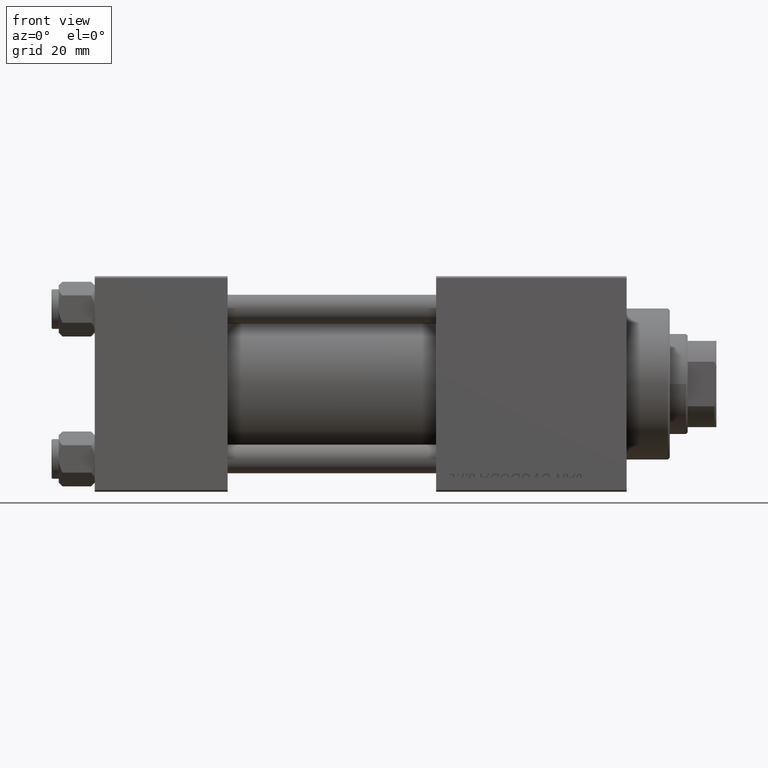
[diagram: clean part render]
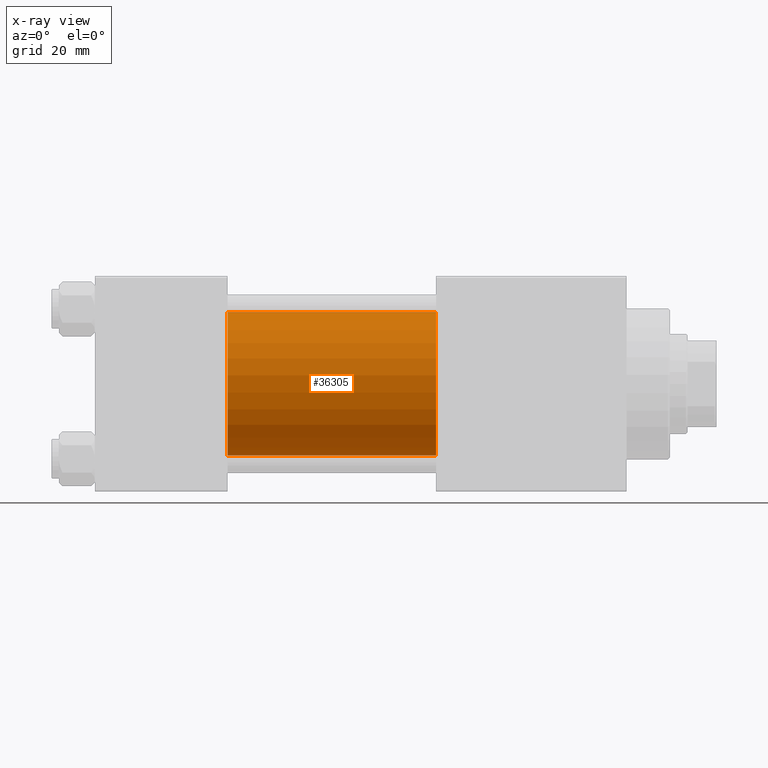
[diagram: x-ray — body ghosted, one internal face saturated and labeled with its STEP entity id]
A machine part, front view, then the same camera in x-ray: the body is ghosted and one INTERNAL B-rep face — a face not visible from any outside direction — is saturated and labeled: STEP entity #36305.
In plain terms, the highlighted cylindrical surface (partial cylindrical patch) has radius 20 mm, axis along (-1, -0, -0).
Its self-contained STEP definition (entity closure, byte-faithful):
#1064 = EDGE_CURVE ( 'NONE', #35994, #17329, #41636, .T. ) ;
#1550 = DIRECTION ( 'NONE',  ( -1.000000000000000000, -0.000000000000000000, -0.000000000000000000 ) ) ;
#2476 = DIRECTION ( 'NONE',  ( 1.000000000000000000, 0.000000000000000000, 0.000000000000000000 ) ) ;
#3521 = AXIS2_PLACEMENT_3D ( 'NONE', #16586, #13949, #6335 ) ;
#3575 = EDGE_CURVE ( 'NONE', #17329, #49754, #25525, .T. ) ;
#4104 = VECTOR ( 'NONE', #1550, 1000.000000000000000 ) ;
#5262 = ORIENTED_EDGE ( 'NONE', *, *, #3575, .T. ) ;
#6335 = DIRECTION ( 'NONE',  ( 0.000000000000000000, 0.000000000000000000, 1.000000000000000000 ) ) ;
#8402 = LINE ( 'NONE', #13210, #4104 ) ;
#9600 = CARTESIAN_POINT ( 'NONE',  ( 37.00000000000000000, -2.602085213965210642E-15, 0.000000000000000000 ) ) ;
#12878 = VERTEX_POINT ( 'NONE', #14855 ) ;
#13210 = CARTESIAN_POINT ( 'NONE',  ( 95.00000000000000000, -2.602085213965210642E-15, 20.00000000000000000 ) ) ;
#13578 = CARTESIAN_POINT ( 'NONE',  ( 95.00000000000000000, -1.527916156705046464E-16, -20.00000000000000000 ) ) ;
#13949 = DIRECTION ( 'NONE',  ( -1.000000000000000000, -0.000000000000000000, -0.000000000000000000 ) ) ;
#14855 = CARTESIAN_POINT ( 'NONE',  ( 37.00000000000000000, -2.602085213965210642E-15, 20.00000000000000000 ) ) ;
#15664 = CARTESIAN_POINT ( 'NONE',  ( 95.00000000000000000, -2.602085213965210642E-15, 20.00000000000000000 ) ) ;
#16586 = CARTESIAN_POINT ( 'NONE',  ( 95.00000000000000000, -2.602085213965210642E-15, 0.000000000000000000 ) ) ;
#17329 = VERTEX_POINT ( 'NONE', #20439 ) ;
#17928 = ORIENTED_EDGE ( 'NONE', *, *, #33637, .F. ) ;
#18138 = DIRECTION ( 'NONE',  ( -1.000000000000000000, -0.000000000000000000, -0.000000000000000000 ) ) ;
#20403 = FACE_OUTER_BOUND ( 'NONE', #26099, .T. ) ;
#20439 = CARTESIAN_POINT ( 'NONE',  ( 95.00000000000000000, -1.527916156705046464E-16, -20.00000000000000000 ) ) ;
#25525 = LINE ( 'NONE', #13578, #31154 ) ;
#25595 = CARTESIAN_POINT ( 'NONE',  ( 95.00000000000000000, -2.602085213965210642E-15, 0.000000000000000000 ) ) ;
#26099 = EDGE_LOOP ( 'NONE', ( #38572, #5262, #17928, #34497 ) ) ;
#29642 = DIRECTION ( 'NONE',  ( 0.000000000000000000, 0.000000000000000000, -1.000000000000000000 ) ) ;
#31154 = VECTOR ( 'NONE', #18138, 1000.000000000000000 ) ;
#31884 = AXIS2_PLACEMENT_3D ( 'NONE', #25595, #33457, #29642 ) ;
#32457 = DIRECTION ( 'NONE',  ( 0.000000000000000000, 0.000000000000000000, -1.000000000000000000 ) ) ;
#33457 = DIRECTION ( 'NONE',  ( 1.000000000000000000, 0.000000000000000000, 0.000000000000000000 ) ) ;
#33637 = EDGE_CURVE ( 'NONE', #12878, #49754, #44889, .T. ) ;
#34497 = ORIENTED_EDGE ( 'NONE', *, *, #44776, .F. ) ;
#35899 = CYLINDRICAL_SURFACE ( 'NONE', #3521, 20.00000000000000000 ) ;
#35994 = VERTEX_POINT ( 'NONE', #15664 ) ;
#36305 = ADVANCED_FACE ( 'NONE', ( #20403 ), #35899, .F. ) ;
#36605 = CARTESIAN_POINT ( 'NONE',  ( 37.00000000000000000, -1.527916156705046464E-16, -20.00000000000000000 ) ) ;
#38572 = ORIENTED_EDGE ( 'NONE', *, *, #1064, .T. ) ;
#41636 = CIRCLE ( 'NONE', #31884, 20.00000000000000000 ) ;
#42466 = AXIS2_PLACEMENT_3D ( 'NONE', #9600, #2476, #32457 ) ;
#44776 = EDGE_CURVE ( 'NONE', #35994, #12878, #8402, .T. ) ;
#44889 = CIRCLE ( 'NONE', #42466, 20.00000000000000000 ) ;
#49754 = VERTEX_POINT ( 'NONE', #36605 ) ;